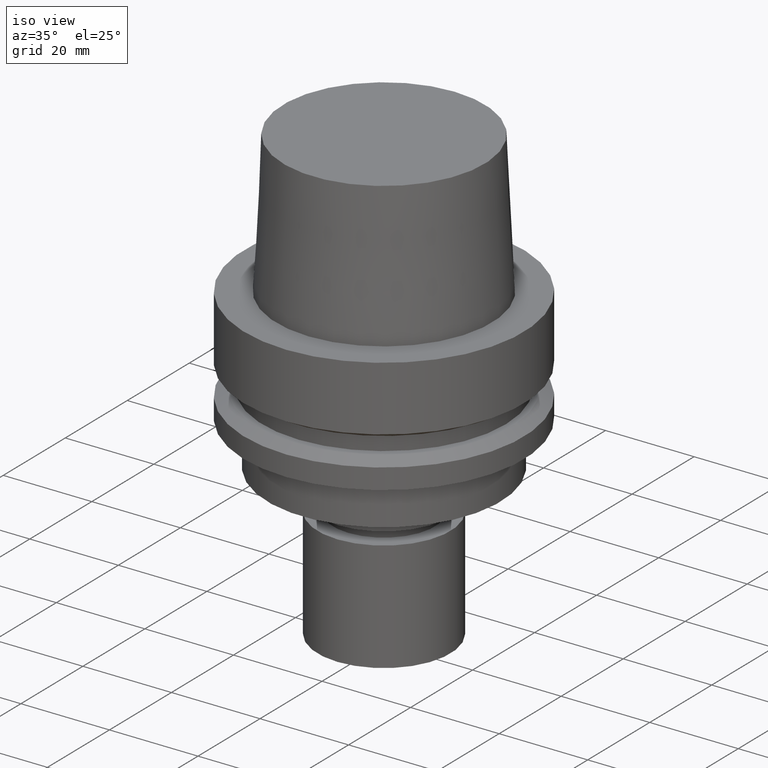
[diagram: clean part render]
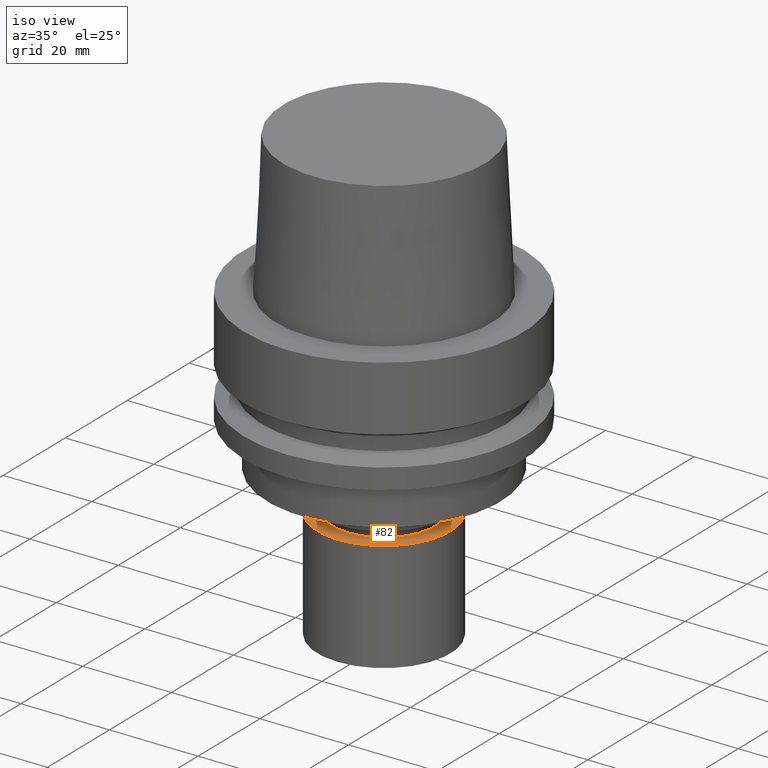
[diagram: same view with one face highlighted and labeled with its STEP entity id]
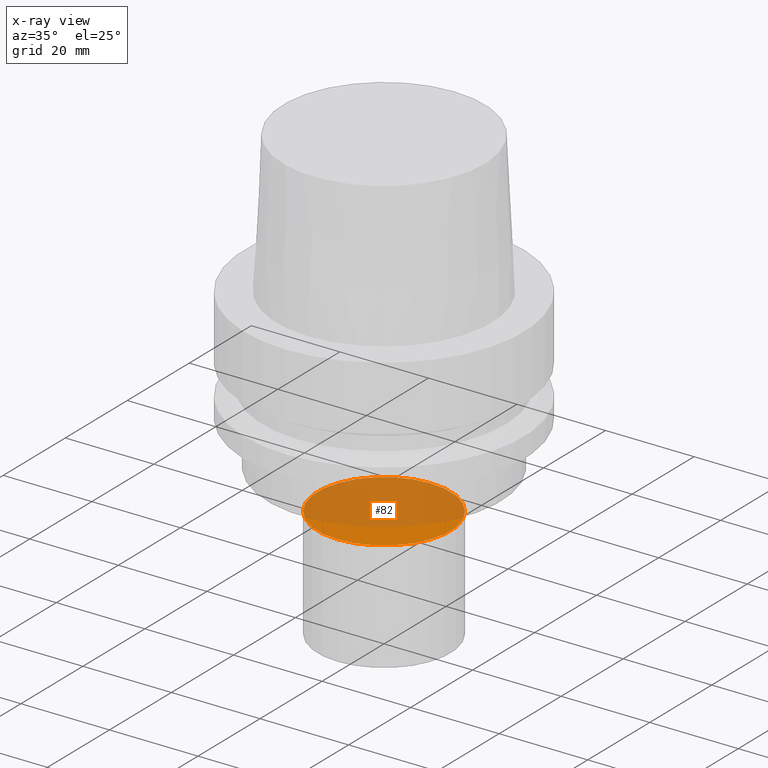
[diagram: x-ray of the same camera — body ghosted, the highlighted face saturated]
A machine part, iso view. The second image highlights one B-rep face of the part: STEP entity #82.
The next image is the same camera in x-ray: the body ghosted, the highlighted face saturated — about 73% of this face is hidden behind the body in this view.
In plain terms, the highlighted planar face has unit normal (-0, -0, 1).
Its self-contained STEP definition (entity closure, byte-faithful):
#82=ADVANCED_FACE('Unnamed[1]',(#223),#224,.T.);
#160=EDGE_CURVE('Unnamed[1]',#345,#345,#346,.T.);
#223=FACE_OUTER_BOUND('',#423,.T.);
#224=PLANE('',#424);
#345=VERTEX_POINT('',#575);
#346=CIRCLE('',#576,15.0000000000001);
#423=EDGE_LOOP('',(#656));
#424=AXIS2_PLACEMENT_3D('',#657,#658,#659);
#575=CARTESIAN_POINT('',(2.75545529808155E-015,15.0000000000001,-45.0));
#576=AXIS2_PLACEMENT_3D('',#792,#793,#794);
#656=ORIENTED_EDGE('',*,*,#160,.F.);
#657=CARTESIAN_POINT('',(2.75545529808155E-015,7.50000000000004,-45.0));
#658=DIRECTION('',(-6.12323399573677E-017,-1.22464679914735E-016,1.0));
#659=DIRECTION('',(1.23259516440783E-032,-1.0,-1.22464679914735E-016));
#792=CARTESIAN_POINT('',(2.75545529808155E-015,5.51091059616309E-015,-45.0));
#793=DIRECTION('',(6.12323399573677E-017,1.22464679914735E-016,-1.0));
#794=DIRECTION('',(-1.23259516440783E-032,1.0,1.22464679914735E-016));